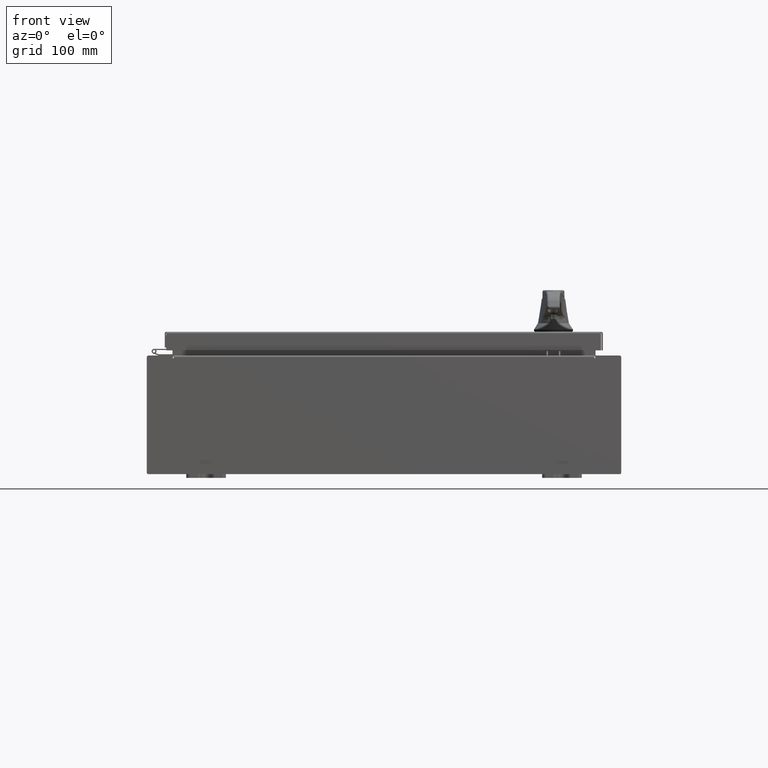
[diagram: clean part render]
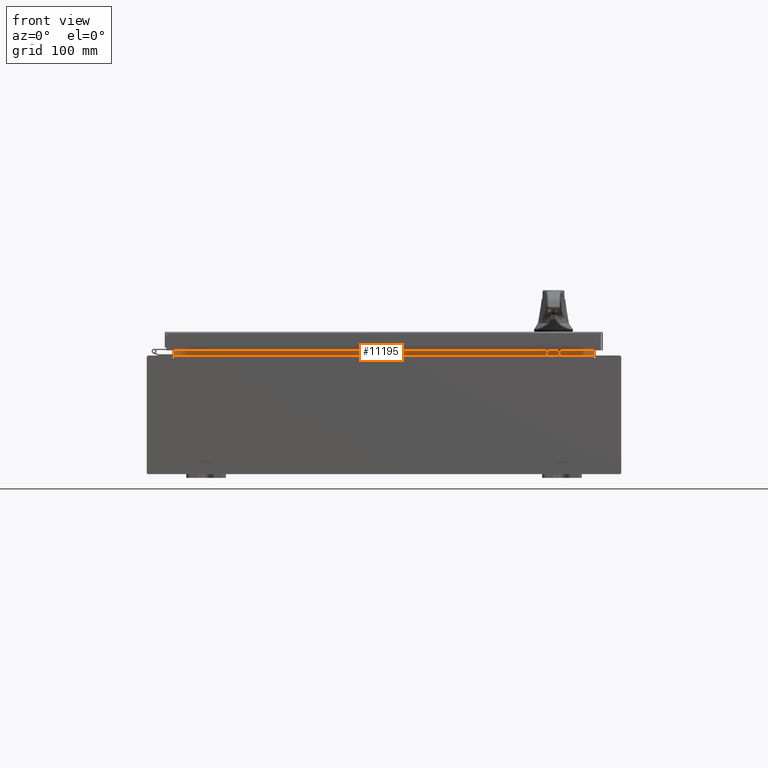
[diagram: same view with one face highlighted and labeled with its STEP entity id]
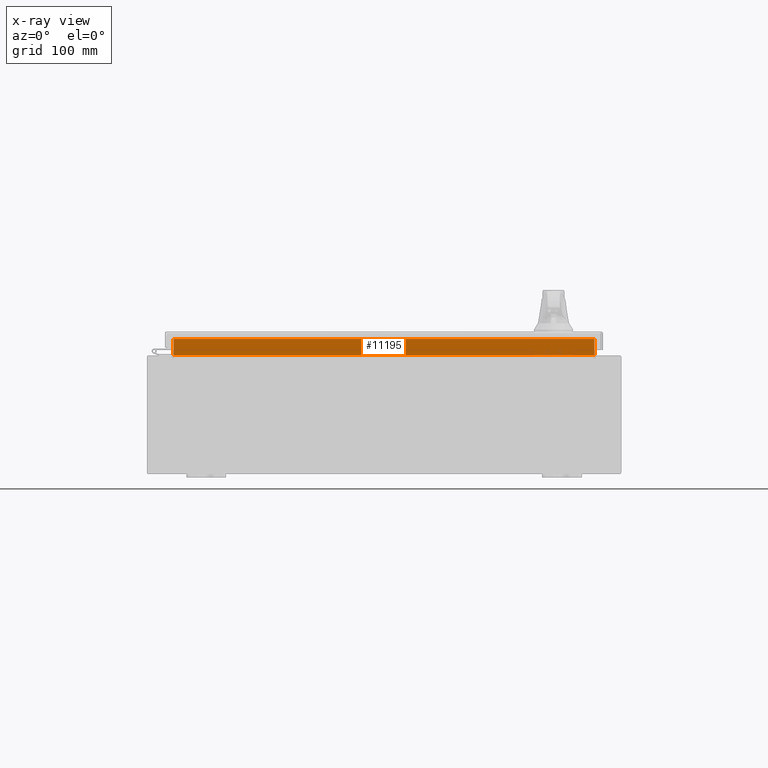
[diagram: x-ray of the same camera — body ghosted, the highlighted face saturated]
A machine part, front view. The second image highlights one B-rep face of the part: STEP entity #11195.
The next image is the same camera in x-ray: the body ghosted, the highlighted face saturated — about 0% of this face is hidden behind the body in this view.
In plain terms, the highlighted planar face has unit normal (0, -1, 0).
Its self-contained STEP definition (entity closure, byte-faithful):
#1084 = EDGE_CURVE ( 'NONE', #59605, #57254, #13522, .T. ) ;
#7067 = ORIENTED_EDGE ( 'NONE', *, *, #50655, .F. ) ;
#7533 = CARTESIAN_POINT ( 'NONE',  ( -10.63720000000000200, -1.300299999999999800, 3.013000000000005200 ) ) ;
#8427 = FACE_OUTER_BOUND ( 'NONE', #69465, .T. ) ;
#9333 = EDGE_CURVE ( 'NONE', #44418, #73985, #100866, .T. ) ;
#9997 = VECTOR ( 'NONE', #49889, 39.37007874015748100 ) ;
#11195 = ADVANCED_FACE ( 'NONE', ( #8427 ), #72699, .T. ) ;
#13522 = LINE ( 'NONE', #70724, #105745 ) ;
#13528 = ORIENTED_EDGE ( 'NONE', *, *, #1084, .F. ) ;
#24599 = DIRECTION ( 'NONE',  ( 1.000000000000000000, 0.0000000000000000000, -5.136404305013091600E-017 ) ) ;
#29116 = ORIENTED_EDGE ( 'NONE', *, *, #44222, .F. ) ;
#29490 = DIRECTION ( 'NONE',  ( 0.0000000000000000000, 1.000000000000000000, 0.0000000000000000000 ) ) ;
#31749 = VECTOR ( 'NONE', #24599, 39.37007874015748100 ) ;
#32471 = CARTESIAN_POINT ( 'NONE',  ( -10.63720000000000200, -1.300299999999999800, 3.000000000000005300 ) ) ;
#33077 = LINE ( 'NONE', #32471, #9997 ) ;
#35247 = CARTESIAN_POINT ( 'NONE',  ( -10.63720000000000400, -1.300299999999999800, 3.013000000000004800 ) ) ;
#44222 = EDGE_CURVE ( 'NONE', #73985, #59605, #50954, .T. ) ;
#44418 = VERTEX_POINT ( 'NONE', #35247 ) ;
#44604 = DIRECTION ( 'NONE',  ( -1.000000000000000000, -0.0000000000000000000, -0.0000000000000000000 ) ) ;
#46232 = CARTESIAN_POINT ( 'NONE',  ( 10.63720000000000200, -1.300299999999999800, 3.837600000000005000 ) ) ;
#48239 = VECTOR ( 'NONE', #109837, 39.37007874015748100 ) ;
#49889 = DIRECTION ( 'NONE',  ( -0.0000000000000000000, -0.0000000000000000000, -1.000000000000000000 ) ) ;
#50655 = EDGE_CURVE ( 'NONE', #57254, #44418, #33077, .T. ) ;
#50954 = LINE ( 'NONE', #101166, #48239 ) ;
#57254 = VERTEX_POINT ( 'NONE', #104165 ) ;
#59605 = VERTEX_POINT ( 'NONE', #46232 ) ;
#63811 = AXIS2_PLACEMENT_3D ( 'NONE', #81414, #29490, #90111 ) ;
#69465 = EDGE_LOOP ( 'NONE', ( #7067, #13528, #29116, #76600 ) ) ;
#70724 = CARTESIAN_POINT ( 'NONE',  ( 10.63720000000000200, -1.300300000000000200, 3.837600000000005000 ) ) ;
#72699 = PLANE ( 'NONE',  #63811 ) ;
#73985 = VERTEX_POINT ( 'NONE', #77537 ) ;
#76600 = ORIENTED_EDGE ( 'NONE', *, *, #9333, .F. ) ;
#77537 = CARTESIAN_POINT ( 'NONE',  ( 10.63720000000000400, -1.300299999999999800, 3.013000000000004800 ) ) ;
#81414 = CARTESIAN_POINT ( 'NONE',  ( 0.0000000000000000000, -1.300299999999999800, 0.0000000000000000000 ) ) ;
#90111 = DIRECTION ( 'NONE',  ( 0.0000000000000000000, -0.0000000000000000000, 1.000000000000000000 ) ) ;
#100866 = LINE ( 'NONE', #7533, #31749 ) ;
#101166 = CARTESIAN_POINT ( 'NONE',  ( 10.63720000000000200, -1.300299999999999800, 3.925300000000005300 ) ) ;
#104165 = CARTESIAN_POINT ( 'NONE',  ( -10.63720000000000200, -1.300300000000000200, 3.837600000000005000 ) ) ;
#105745 = VECTOR ( 'NONE', #44604, 39.37007874015748100 ) ;
#109837 = DIRECTION ( 'NONE',  ( -0.0000000000000000000, -0.0000000000000000000, 1.000000000000000000 ) ) ;